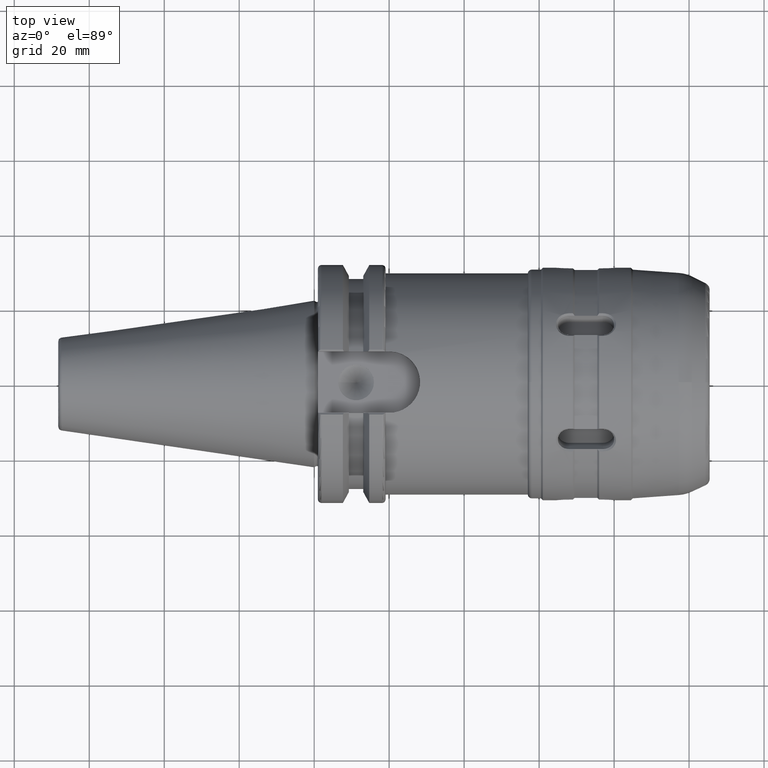
[diagram: clean part render]
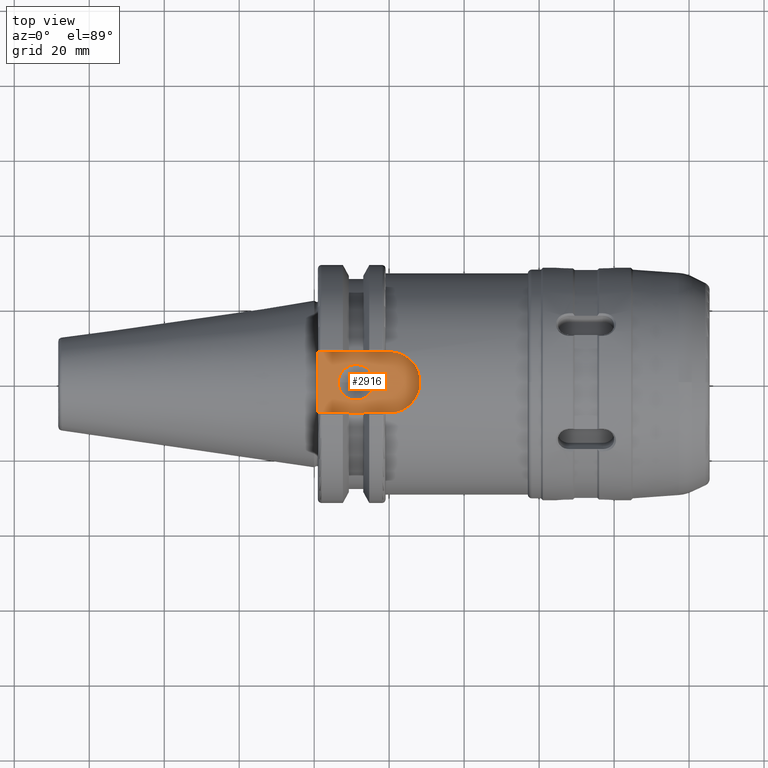
[diagram: same view with one face highlighted and labeled with its STEP entity id]
A machine part, top view. The second image highlights one B-rep face of the part: STEP entity #2916.
In plain terms, the highlighted planar face has unit normal (0, 0, 1).
Its self-contained STEP definition (entity closure, byte-faithful):
#155=FACE_BOUND('',#479,.T.);
#190=PLANE('',#3213);
#295=FACE_OUTER_BOUND('',#478,.T.);
#478=EDGE_LOOP('',(#2193,#2194,#2195,#2196));
#479=EDGE_LOOP('',(#2197));
#613=CIRCLE('',#3117,8.19);
#655=CIRCLE('',#3205,4.7625);
#775=LINE('',#4462,#978);
#794=LINE('',#4590,#997);
#803=LINE('',#4640,#1006);
#978=VECTOR('',#3547,10.);
#997=VECTOR('',#3592,10.);
#1006=VECTOR('',#3625,10.);
#1198=VERTEX_POINT('',#4246);
#1199=VERTEX_POINT('',#4248);
#1247=VERTEX_POINT('',#4461);
#1273=VERTEX_POINT('',#4583);
#1296=VERTEX_POINT('',#4679);
#1485=EDGE_CURVE('',#1199,#1198,#613,.T.);
#1551=EDGE_CURVE('',#1247,#1199,#775,.T.);
#1589=EDGE_CURVE('',#1247,#1273,#794,.T.);
#1609=EDGE_CURVE('',#1198,#1273,#803,.T.);
#1624=EDGE_CURVE('',#1296,#1296,#655,.T.);
#2193=ORIENTED_EDGE('',*,*,#1589,.F.);
#2194=ORIENTED_EDGE('',*,*,#1551,.T.);
#2195=ORIENTED_EDGE('',*,*,#1485,.T.);
#2196=ORIENTED_EDGE('',*,*,#1609,.T.);
#2197=ORIENTED_EDGE('',*,*,#1624,.T.);
#2916=ADVANCED_FACE('',(#295,#155),#190,.T.);
#3117=AXIS2_PLACEMENT_3D('',#4249,#3423,#3424);
#3205=AXIS2_PLACEMENT_3D('',#4680,#3661,#3662);
#3213=AXIS2_PLACEMENT_3D('',#4689,#3678,#3679);
#3423=DIRECTION('center_axis',(0.,0.,1.));
#3424=DIRECTION('ref_axis',(5.42233467460394E-16,-1.,0.));
#3547=DIRECTION('',(1.,6.41073662513214E-16,0.));
#3592=DIRECTION('',(0.,1.,0.));
#3625=DIRECTION('',(-1.,-1.16558847729675E-16,0.));
#3661=DIRECTION('center_axis',(0.,0.,-1.));
#3662=DIRECTION('ref_axis',(1.,0.,0.));
#3678=DIRECTION('center_axis',(0.,0.,1.));
#3679=DIRECTION('ref_axis',(1.,0.,0.));
#4246=CARTESIAN_POINT('',(20.05,8.19,25.));
#4248=CARTESIAN_POINT('',(20.05,-8.19,25.));
#4249=CARTESIAN_POINT('Origin',(20.05,0.,25.));
#4461=CARTESIAN_POINT('',(1.00000000000001,-8.19000000000002,25.));
#4462=CARTESIAN_POINT('',(1.00000000000001,-8.19000000000002,25.));
#4583=CARTESIAN_POINT('',(0.999999999999998,8.19,25.));
#4590=CARTESIAN_POINT('',(1.,15.875,25.));
#4640=CARTESIAN_POINT('',(20.05,8.19,25.));
#4679=CARTESIAN_POINT('',(6.4135,-5.83238038093927E-16,25.));
#4680=CARTESIAN_POINT('Origin',(11.176,0.,25.));
#4689=CARTESIAN_POINT('Origin',(14.62,0.,25.));